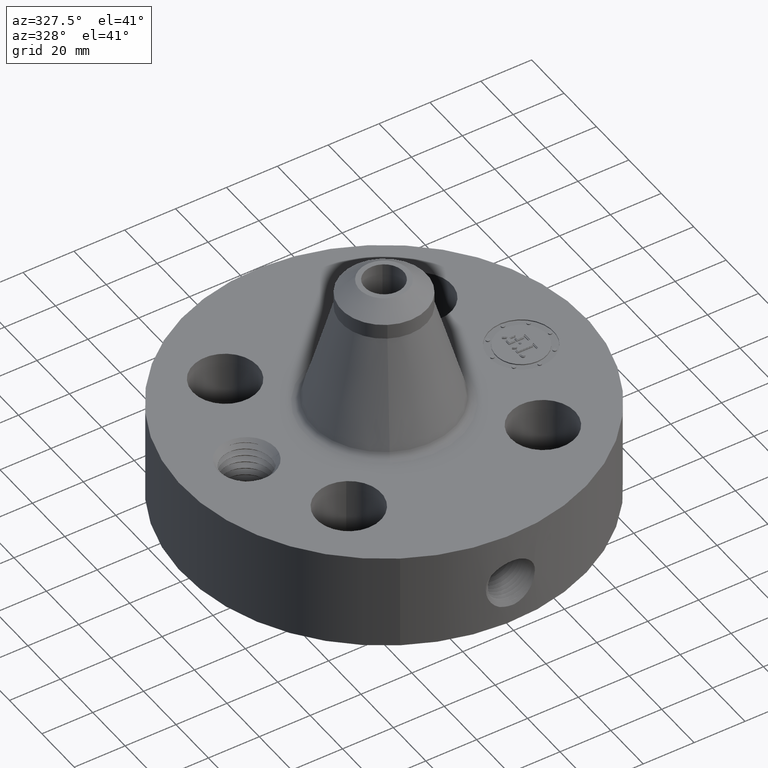
[diagram: clean part render]
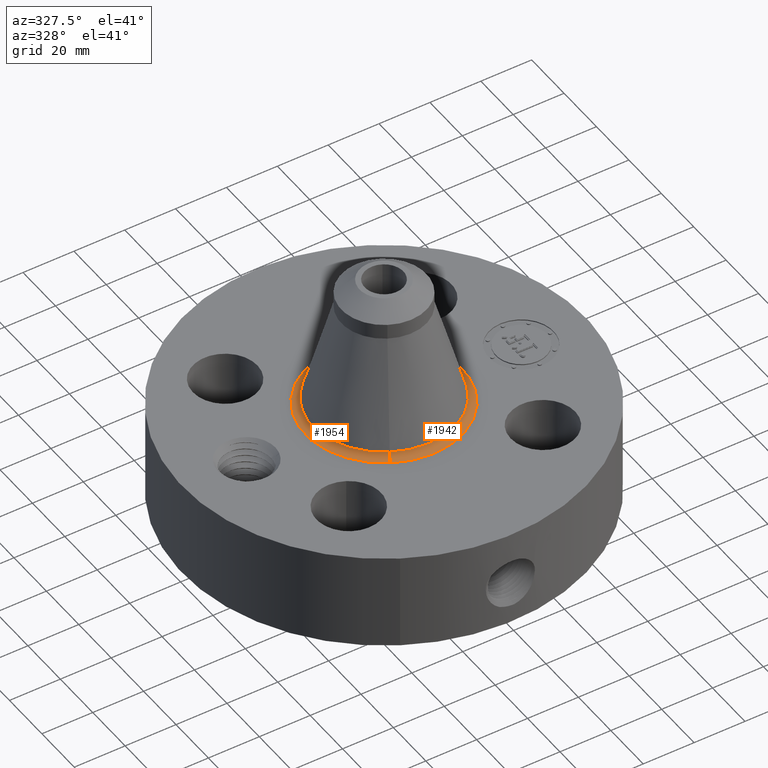
[diagram: same view with one multi-face feature highlighted, each face labeled with its STEP entity id]
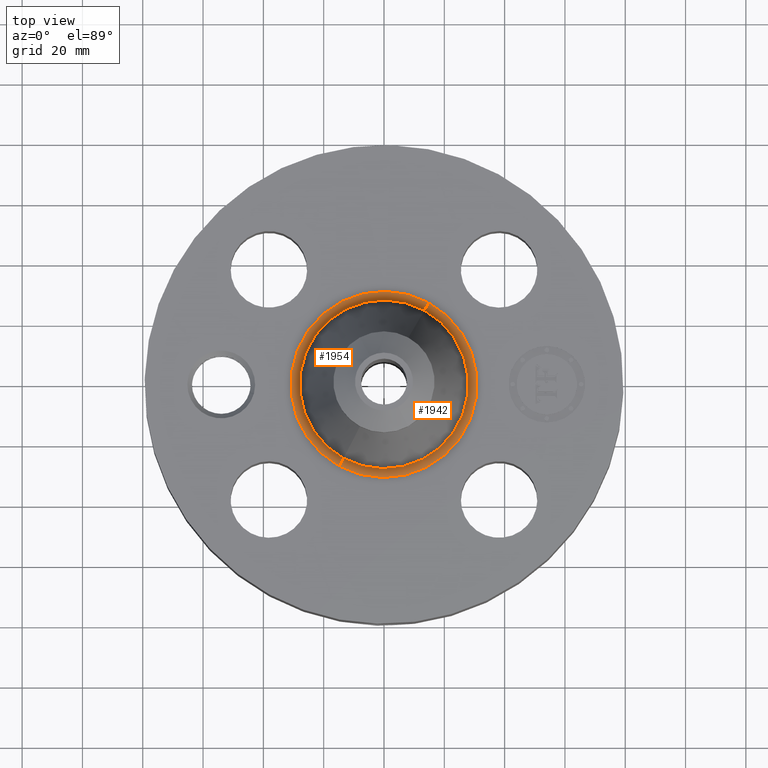
[diagram: same view with one multi-face feature highlighted, each face labeled with its STEP entity id]
A machine part, auxiliary view. The highlighted faces form ONE feature: a constant-radius fillet chain: 2 tangent blend faces with common blend radius 3.048 mm. The faces share edges in the B-rep.
A second angle (top view) of the same feature is appended — it is thin or edge-on in the first view.
Their STEP definitions:
[1] entity #1954 (Torus):
#487=AXIS2_PLACEMENT_3D('Circle Axis2P3D',#485,#486,$) ;
#1915=AXIS2_PLACEMENT_3D('Torus Axis2P3D',#1912,#1913,#1914) ;
#1919=AXIS2_PLACEMENT_3D('Circle Axis2P3D',#1917,#1918,$) ;
#1933=AXIS2_PLACEMENT_3D('Circle Axis2P3D',#1931,#1932,$) ;
#1945=AXIS2_PLACEMENT_3D('Circle Axis2P3D',#1943,#1944,$) ;
#485=CARTESIAN_POINT('Axis2P3D Location',(0.,0.,1.75000000001)) ;
#489=CARTESIAN_POINT('Vertex',(-0.583037222207,-1.06724247655,1.75000000001)) ;
#491=CARTESIAN_POINT('Vertex',(0.583037222207,1.06724247655,1.75000000001)) ;
#1912=CARTESIAN_POINT('Axis2P3D Location',(0.,0.,1.87000000001)) ;
#1917=CARTESIAN_POINT('Axis2P3D Location',(0.583037222207,1.06724247655,1.87000000001)) ;
#1921=CARTESIAN_POINT('Vertex',(0.527620327019,0.965802530334,1.83776795013)) ;
#1928=CARTESIAN_POINT('Vertex',(-0.527620327019,-0.965802530334,1.83776795013)) ;
#1931=CARTESIAN_POINT('Axis2P3D Location',(-0.583037222207,-1.06724247655,1.87000000001)) ;
#1943=CARTESIAN_POINT('Axis2P3D Location',(0.,0.,1.83776795013)) ;
#486=DIRECTION('Axis2P3D Direction',(0.,0.,-0.0393700787402)) ;
#1913=DIRECTION('Axis2P3D Direction',(0.,0.,-0.0393700787402)) ;
#1914=DIRECTION('Axis2P3D XDirection',(-0.0188750212049,-0.0345504945626,0.)) ;
#1918=DIRECTION('Axis2P3D Direction',(-0.0345504945626,0.0188750212049,0.)) ;
#1932=DIRECTION('Axis2P3D Direction',(0.0345504945626,-0.0188750212049,0.)) ;
#1944=DIRECTION('Axis2P3D Direction',(0.,0.,-0.0393700787402)) ;
#1949=ORIENTED_EDGE('',*,*,#493,.F.) ;
#1950=ORIENTED_EDGE('',*,*,#1935,.T.) ;
#1951=ORIENTED_EDGE('',*,*,#1947,.T.) ;
#1952=ORIENTED_EDGE('',*,*,#1923,.F.) ;
#1954=ADVANCED_FACE('PartBody',(#1953),#1916,.F.) ;
#488=CIRCLE('generated circle',#487,1.21611632101) ;
#1920=CIRCLE('generated circle',#1919,0.12) ;
#1934=CIRCLE('generated circle',#1933,0.12) ;
#1946=CIRCLE('generated circle',#1945,1.10052611831) ;
#1916=TOROIDAL_SURFACE('homeo Torus',#1915,1.21611632101,0.12) ;
#493=EDGE_CURVE('',#490,#492,#488,.T.) ;
#1923=EDGE_CURVE('',#492,#1922,#1920,.T.) ;
#1935=EDGE_CURVE('',#490,#1929,#1934,.T.) ;
#1947=EDGE_CURVE('',#1929,#1922,#1946,.T.) ;
#1948=EDGE_LOOP('',(#1949,#1950,#1951,#1952)) ;
#1953=FACE_OUTER_BOUND('',#1948,.T.) ;
#490=VERTEX_POINT('',#489) ;
#492=VERTEX_POINT('',#491) ;
#1922=VERTEX_POINT('',#1921) ;
#1929=VERTEX_POINT('',#1928) ;
[2] entity #1942 (Torus):
#496=AXIS2_PLACEMENT_3D('Circle Axis2P3D',#494,#495,$) ;
#1915=AXIS2_PLACEMENT_3D('Torus Axis2P3D',#1912,#1913,#1914) ;
#1919=AXIS2_PLACEMENT_3D('Circle Axis2P3D',#1917,#1918,$) ;
#1926=AXIS2_PLACEMENT_3D('Circle Axis2P3D',#1924,#1925,$) ;
#1933=AXIS2_PLACEMENT_3D('Circle Axis2P3D',#1931,#1932,$) ;
#489=CARTESIAN_POINT('Vertex',(-0.583037222207,-1.06724247655,1.75000000001)) ;
#491=CARTESIAN_POINT('Vertex',(0.583037222207,1.06724247655,1.75000000001)) ;
#494=CARTESIAN_POINT('Axis2P3D Location',(0.,0.,1.75000000001)) ;
#1912=CARTESIAN_POINT('Axis2P3D Location',(0.,0.,1.87000000001)) ;
#1917=CARTESIAN_POINT('Axis2P3D Location',(0.583037222207,1.06724247655,1.87000000001)) ;
#1921=CARTESIAN_POINT('Vertex',(0.527620327019,0.965802530334,1.83776795013)) ;
#1924=CARTESIAN_POINT('Axis2P3D Location',(0.,0.,1.83776795013)) ;
#1928=CARTESIAN_POINT('Vertex',(-0.527620327019,-0.965802530334,1.83776795013)) ;
#1931=CARTESIAN_POINT('Axis2P3D Location',(-0.583037222207,-1.06724247655,1.87000000001)) ;
#495=DIRECTION('Axis2P3D Direction',(0.,0.,-0.0393700787402)) ;
#1913=DIRECTION('Axis2P3D Direction',(0.,0.,-0.0393700787402)) ;
#1914=DIRECTION('Axis2P3D XDirection',(-0.0188750212049,-0.0345504945626,0.)) ;
#1918=DIRECTION('Axis2P3D Direction',(-0.0345504945626,0.0188750212049,0.)) ;
#1925=DIRECTION('Axis2P3D Direction',(0.,0.,-0.0393700787402)) ;
#1932=DIRECTION('Axis2P3D Direction',(0.0345504945626,-0.0188750212049,0.)) ;
#1937=ORIENTED_EDGE('',*,*,#498,.F.) ;
#1938=ORIENTED_EDGE('',*,*,#1923,.T.) ;
#1939=ORIENTED_EDGE('',*,*,#1930,.T.) ;
#1940=ORIENTED_EDGE('',*,*,#1935,.F.) ;
#1942=ADVANCED_FACE('PartBody',(#1941),#1916,.F.) ;
#497=CIRCLE('generated circle',#496,1.21611632101) ;
#1920=CIRCLE('generated circle',#1919,0.12) ;
#1927=CIRCLE('generated circle',#1926,1.10052611831) ;
#1934=CIRCLE('generated circle',#1933,0.12) ;
#1916=TOROIDAL_SURFACE('homeo Torus',#1915,1.21611632101,0.12) ;
#498=EDGE_CURVE('',#492,#490,#497,.T.) ;
#1923=EDGE_CURVE('',#492,#1922,#1920,.T.) ;
#1930=EDGE_CURVE('',#1922,#1929,#1927,.T.) ;
#1935=EDGE_CURVE('',#490,#1929,#1934,.T.) ;
#1936=EDGE_LOOP('',(#1937,#1938,#1939,#1940)) ;
#1941=FACE_OUTER_BOUND('',#1936,.T.) ;
#490=VERTEX_POINT('',#489) ;
#492=VERTEX_POINT('',#491) ;
#1922=VERTEX_POINT('',#1921) ;
#1929=VERTEX_POINT('',#1928) ;